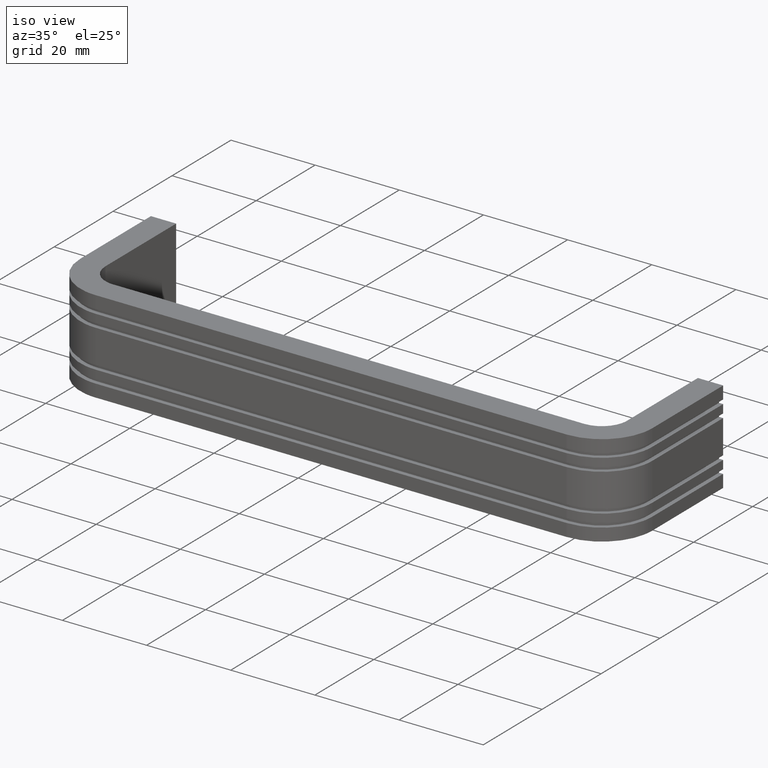
[diagram: clean part render]
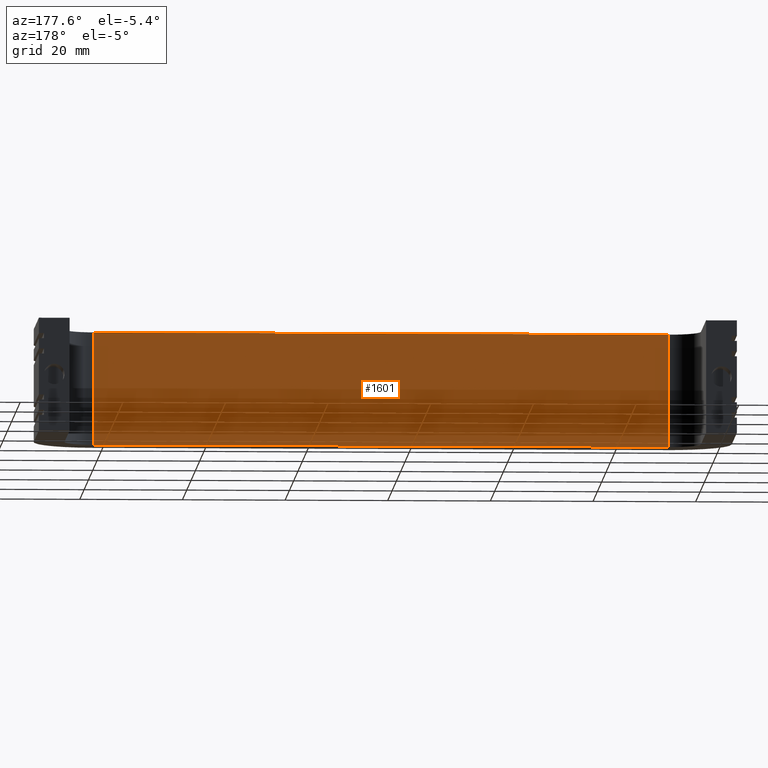
[diagram: tour spotlight — one face highlighted and labeled with its STEP entity id]
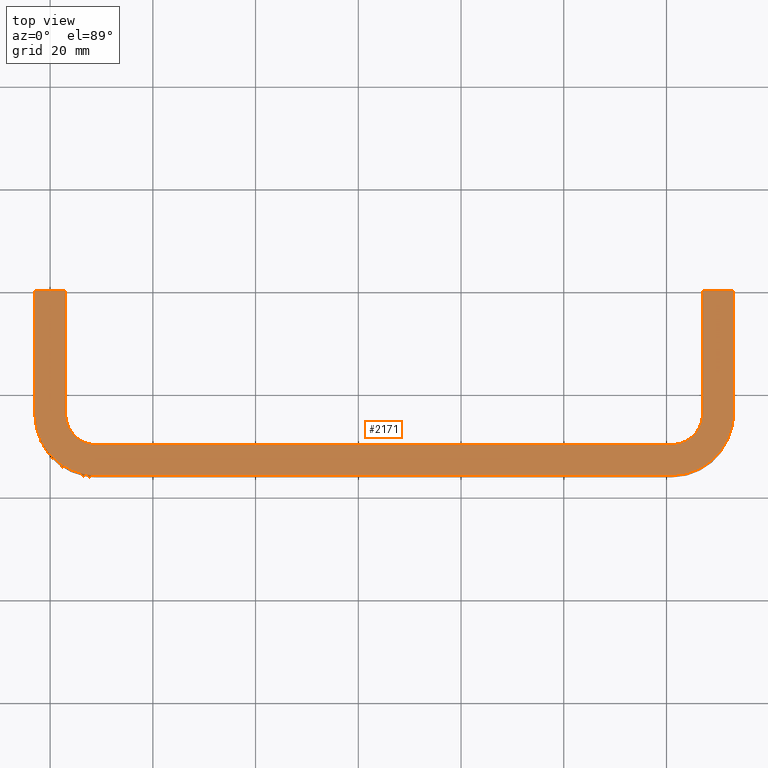
[diagram: tour spotlight — one face highlighted and labeled with its STEP entity id]
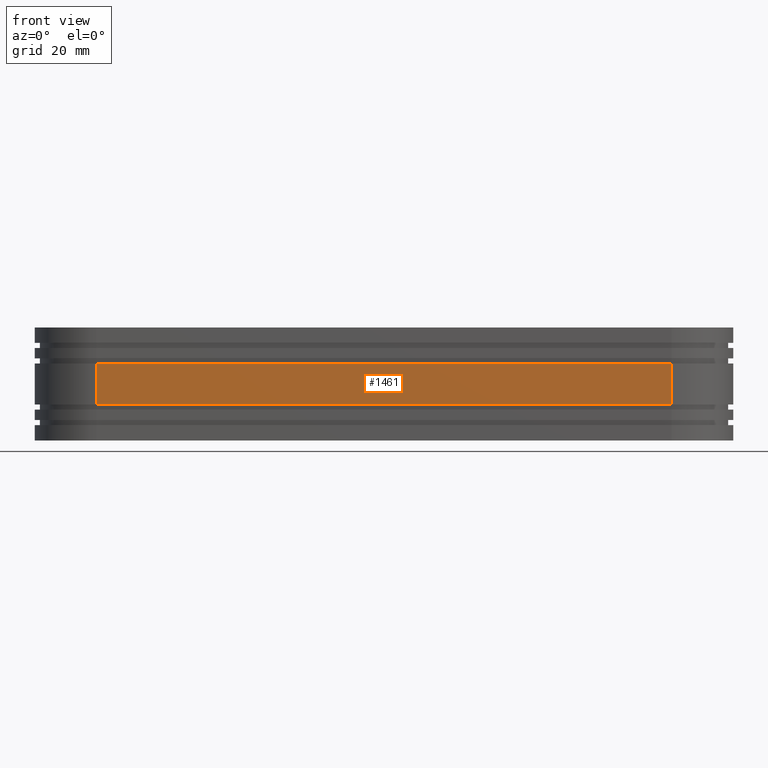
[diagram: tour spotlight — one face highlighted and labeled with its STEP entity id]
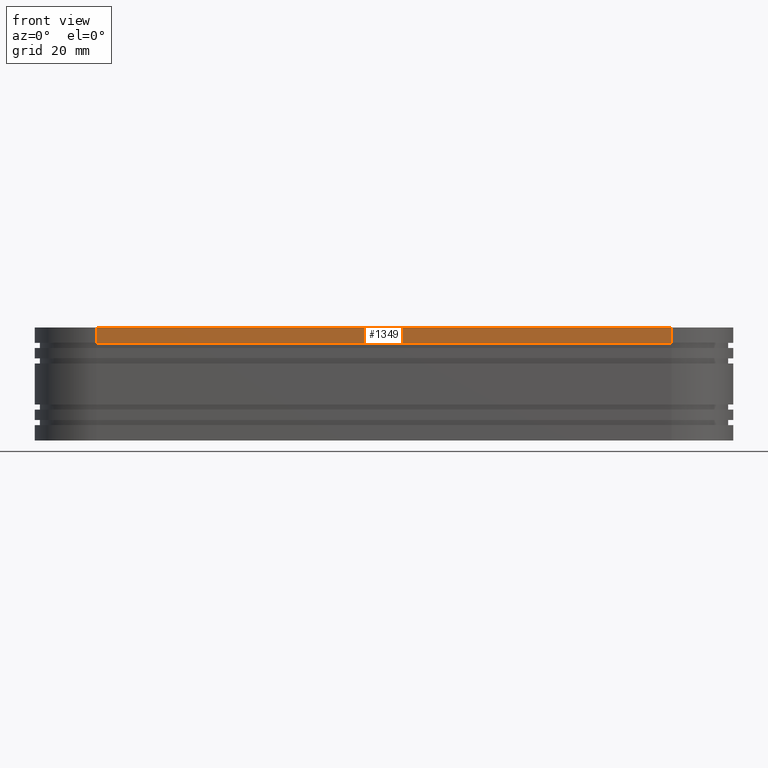
[diagram: tour spotlight — one face highlighted and labeled with its STEP entity id]
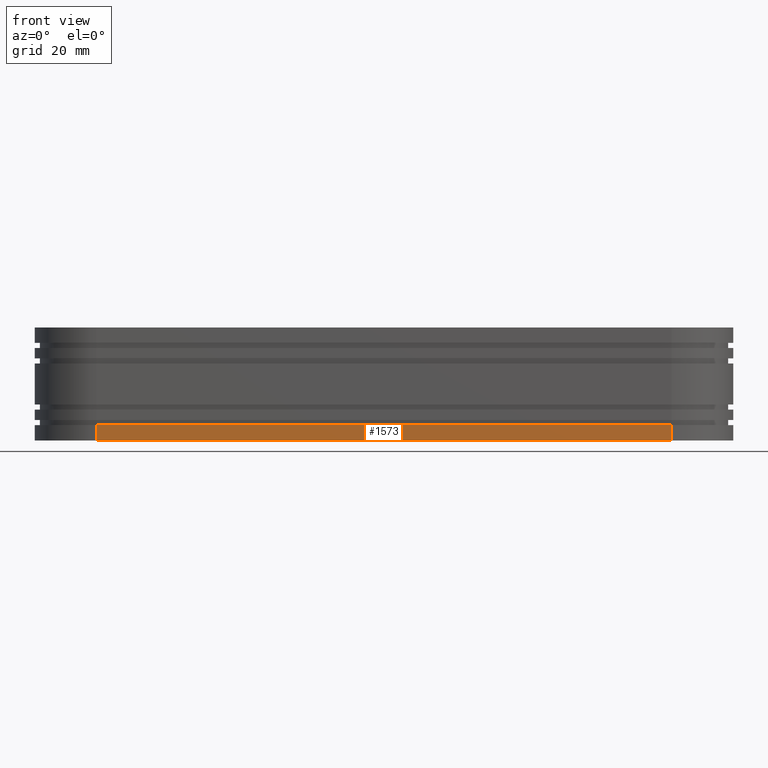
[diagram: tour spotlight — one face highlighted and labeled with its STEP entity id]
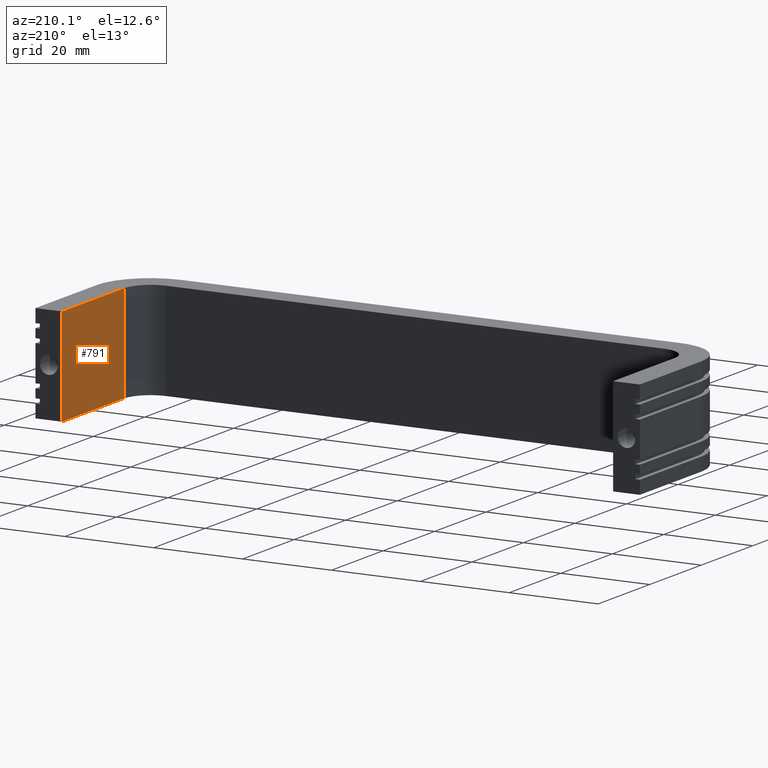
[diagram: tour spotlight — one face highlighted and labeled with its STEP entity id]
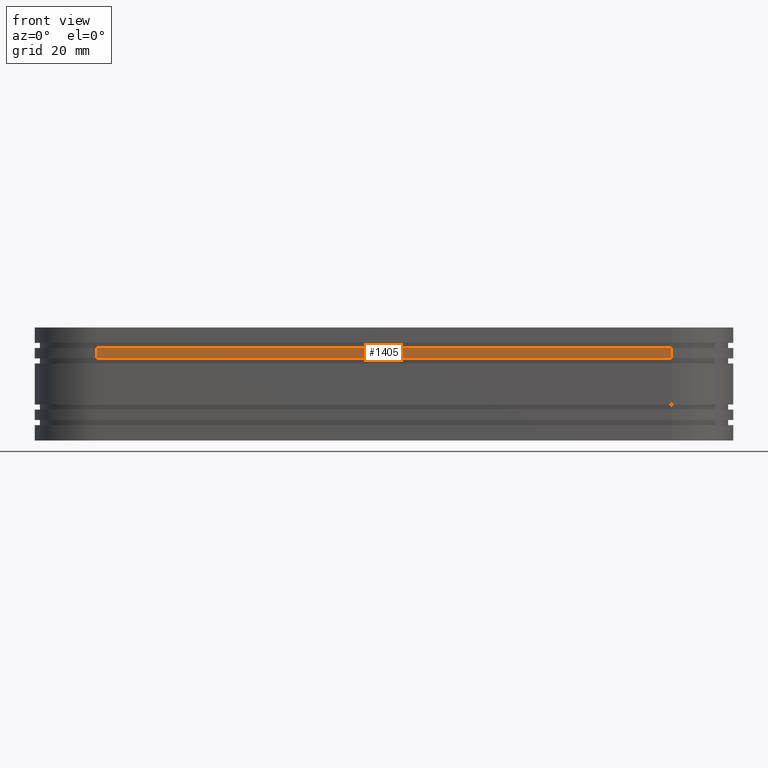
[diagram: tour spotlight — one face highlighted and labeled with its STEP entity id]
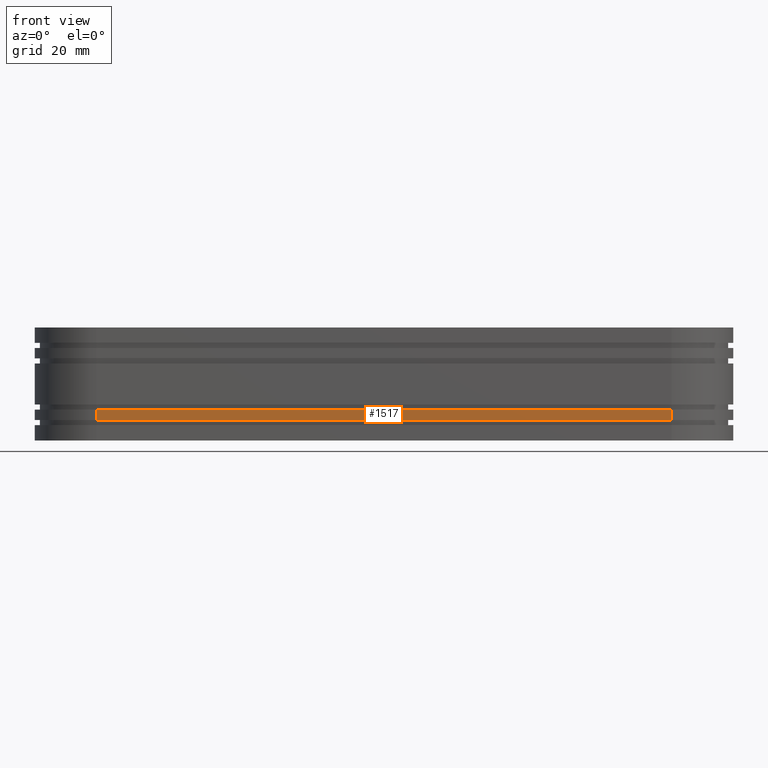
[diagram: tour spotlight — one face highlighted and labeled with its STEP entity id]
A machine part: a face-by-face anatomy tour. The part has 68 B-rep faces; the first image is the clean iso view, then the 8 largest visible faces are spotlighted one at a time (largest first), each with its STEP entity span.

Face 1 — auxiliary view, entity #1601. In plain terms, the highlighted face is a freeform B-spline surface patch.
Definition (entity closure, byte-faithful):
#1283=CARTESIAN_POINT('',(120.999900000000000,-30.0,-11.0));
#1284=VERTEX_POINT('',#1283);
#1298=CARTESIAN_POINT('',(120.999900000000000,-30.0,11.0));
#1299=VERTEX_POINT('',#1298);
#1300=CARTESIAN_POINT('',(120.999900000000000,-30.0,11.0));
#1301=CARTESIAN_POINT('',(120.999900000000000,-30.0,-11.0));
#1302=QUASI_UNIFORM_CURVE('',1,(#1300,#1301),.UNSPECIFIED.,.F.,.U.);
#1303=EDGE_CURVE('',#1299,#1284,#1302,.T.);
#1574=CARTESIAN_POINT('',(3.405605212077551,-30.0,12.098899957359730));
#1575=CARTESIAN_POINT('',(3.405605212077551,-30.0,-12.098900547445711));
#1576=CARTESIAN_POINT('',(126.594297791993900,-30.0,12.098899957359730));
#1577=CARTESIAN_POINT('',(126.594297791993900,-30.0,-12.098900547445711));
#1578=B_SPLINE_SURFACE_WITH_KNOTS('',1,1,((#1574,#1576),(#1575,#1577)),.UNSPECIFIED.,.F.,.F.,.U.,(2,2),(2,2),(0.0,24.197800504805450),(0.0,123.188692579916310),.UNSPECIFIED.);
#1579=CARTESIAN_POINT('',(9.0,-30.0,-11.0));
#1580=VERTEX_POINT('',#1579);
#1581=CARTESIAN_POINT('',(9.0,-30.0,-11.0));
#1582=CARTESIAN_POINT('',(120.999900000000000,-30.0,-11.0));
#1583=QUASI_UNIFORM_CURVE('',1,(#1581,#1582),.UNSPECIFIED.,.F.,.U.);
#1584=EDGE_CURVE('',#1580,#1284,#1583,.T.);
#1585=ORIENTED_EDGE('',*,*,#1584,.F.);
#1586=CARTESIAN_POINT('',(9.0,-30.0,11.0));
#1587=VERTEX_POINT('',#1586);
#1588=CARTESIAN_POINT('',(9.0,-30.0,11.0));
#1589=CARTESIAN_POINT('',(9.0,-30.0,-11.0));
#1590=QUASI_UNIFORM_CURVE('',1,(#1588,#1589),.UNSPECIFIED.,.F.,.U.);
#1591=EDGE_CURVE('',#1587,#1580,#1590,.T.);
#1592=ORIENTED_EDGE('',*,*,#1591,.F.);
#1593=CARTESIAN_POINT('',(9.0,-30.0,11.0));
#1594=CARTESIAN_POINT('',(120.999900000000000,-30.0,11.0));
#1595=QUASI_UNIFORM_CURVE('',1,(#1593,#1594),.UNSPECIFIED.,.F.,.U.);
#1596=EDGE_CURVE('',#1587,#1299,#1595,.T.);
#1597=ORIENTED_EDGE('',*,*,#1596,.T.);
#1598=ORIENTED_EDGE('',*,*,#1303,.T.);
#1599=EDGE_LOOP('',(#1585,#1592,#1597,#1598));
#1600=FACE_OUTER_BOUND('',#1599,.T.);
#1601=ADVANCED_FACE('',(#1600),#1578,.F.);

Face 2 — top view, entity #2171. In plain terms, the highlighted face is a freeform B-spline surface patch.
Definition (entity closure, byte-faithful):
#437=CARTESIAN_POINT('',(132.999900000000000,-24.0,11.0));
#438=VERTEX_POINT('',#437);
#439=CARTESIAN_POINT('',(132.999900000000000,0.0,11.0));
#440=VERTEX_POINT('',#439);
#441=CARTESIAN_POINT('',(132.999900000000000,-24.0,11.0));
#442=CARTESIAN_POINT('',(132.999900000000000,0.0,11.0));
#443=QUASI_UNIFORM_CURVE('',1,(#441,#442),.UNSPECIFIED.,.F.,.U.);
#444=EDGE_CURVE('',#438,#440,#443,.T.);
#770=CARTESIAN_POINT('',(126.999900000000000,-24.0,11.0));
#771=VERTEX_POINT('',#770);
#777=CARTESIAN_POINT('',(126.999900000000000,0.0,11.0));
#778=VERTEX_POINT('',#777);
#779=CARTESIAN_POINT('',(126.999900000000000,-24.0,11.0));
#780=CARTESIAN_POINT('',(126.999900000000000,0.0,11.0));
#781=QUASI_UNIFORM_CURVE('',1,(#779,#780),.UNSPECIFIED.,.F.,.U.);
#782=EDGE_CURVE('',#771,#778,#781,.T.);
#806=CARTESIAN_POINT('',(120.999900000000000,-36.0,11.0));
#807=VERTEX_POINT('',#806);
#808=CARTESIAN_POINT('',(120.999900000000000,-36.000000000000007,11.0));
#809=CARTESIAN_POINT('',(132.999900000000000,-36.000000000000014,11.0));
#810=CARTESIAN_POINT('',(132.999900000000000,-24.0,11.0));
#818=(BOUNDED_CURVE()B_SPLINE_CURVE(2,(#808,#809,#810),.UNSPECIFIED.,.F.,.U.)CURVE()GEOMETRIC_REPRESENTATION_ITEM()QUASI_UNIFORM_CURVE()RATIONAL_B_SPLINE_CURVE((1.0,0.707106781186548,1.0))REPRESENTATION_ITEM(''));
#819=EDGE_CURVE('',#807,#438,#818,.T.);
#1298=CARTESIAN_POINT('',(120.999900000000000,-30.0,11.0));
#1299=VERTEX_POINT('',#1298);
#1305=CARTESIAN_POINT('',(120.999900000000000,-30.0,11.0));
#1306=CARTESIAN_POINT('',(126.999900000000000,-30.000000000000004,11.0));
#1307=CARTESIAN_POINT('',(126.999900000000000,-24.0,11.0));
#1315=(BOUNDED_CURVE()B_SPLINE_CURVE(2,(#1305,#1306,#1307),.UNSPECIFIED.,.F.,.U.)CURVE()GEOMETRIC_REPRESENTATION_ITEM()QUASI_UNIFORM_CURVE()RATIONAL_B_SPLINE_CURVE((1.0,0.707106781186548,1.0))REPRESENTATION_ITEM(''));
#1316=EDGE_CURVE('',#1299,#771,#1315,.T.);
#1327=CARTESIAN_POINT('',(9.0,-36.0,11.0));
#1328=VERTEX_POINT('',#1327);
#1329=CARTESIAN_POINT('',(9.0,-36.0,11.0));
#1330=CARTESIAN_POINT('',(120.999900000000000,-36.0,11.0));
#1331=QUASI_UNIFORM_CURVE('',1,(#1329,#1330),.UNSPECIFIED.,.F.,.U.);
#1332=EDGE_CURVE('',#1328,#807,#1331,.T.);
#1586=CARTESIAN_POINT('',(9.0,-30.0,11.0));
#1587=VERTEX_POINT('',#1586);
#1593=CARTESIAN_POINT('',(9.0,-30.0,11.0));
#1594=CARTESIAN_POINT('',(120.999900000000000,-30.0,11.0));
#1595=QUASI_UNIFORM_CURVE('',1,(#1593,#1594),.UNSPECIFIED.,.F.,.U.);
#1596=EDGE_CURVE('',#1587,#1299,#1595,.T.);
#1616=CARTESIAN_POINT('',(-3.0,-24.0,11.0));
#1617=VERTEX_POINT('',#1616);
#1618=CARTESIAN_POINT('',(-3.000000000000001,-24.0,11.0));
#1619=CARTESIAN_POINT('',(-3.0,-36.000000000000014,11.0));
#1620=CARTESIAN_POINT('',(9.0,-36.000000000000007,11.0));
#1628=(BOUNDED_CURVE()B_SPLINE_CURVE(2,(#1618,#1619,#1620),.UNSPECIFIED.,.F.,.U.)CURVE()GEOMETRIC_REPRESENTATION_ITEM()QUASI_UNIFORM_CURVE()RATIONAL_B_SPLINE_CURVE((1.0,0.707106781186548,1.0))REPRESENTATION_ITEM(''));
#1629=EDGE_CURVE('',#1617,#1328,#1628,.T.);
#2108=CARTESIAN_POINT('',(3.0,-24.0,11.0));
#2109=VERTEX_POINT('',#2108);
#2115=CARTESIAN_POINT('',(2.999999999999999,-24.0,11.0));
#2116=CARTESIAN_POINT('',(2.999999999999999,-30.000000000000004,11.0));
#2117=CARTESIAN_POINT('',(9.0,-30.0,11.0));
#2125=(BOUNDED_CURVE()B_SPLINE_CURVE(2,(#2115,#2116,#2117),.UNSPECIFIED.,.F.,.U.)CURVE()GEOMETRIC_REPRESENTATION_ITEM()QUASI_UNIFORM_CURVE()RATIONAL_B_SPLINE_CURVE((1.0,0.707106781186548,1.0))REPRESENTATION_ITEM(''));
#2126=EDGE_CURVE('',#2109,#1587,#2125,.T.);
#2132=CARTESIAN_POINT('',(139.793088358057100,-37.798199930225017,11.0));
#2133=CARTESIAN_POINT('',(-9.793198085527894,-37.798199930225017,11.0));
#2134=CARTESIAN_POINT('',(139.793088358057100,1.798200895820261,11.0));
#2135=CARTESIAN_POINT('',(-9.793198085527894,1.798200895820261,11.0));
#2136=B_SPLINE_SURFACE_WITH_KNOTS('',1,1,((#2132,#2134),(#2133,#2135)),.UNSPECIFIED.,.F.,.F.,.U.,(2,2),(2,2),(0.0,149.586286443585010),(0.0,39.596400826045283),.UNSPECIFIED.);
#2137=CARTESIAN_POINT('',(-3.0,0.0,11.0));
#2138=VERTEX_POINT('',#2137);
#2139=CARTESIAN_POINT('',(-3.0,0.0,11.0));
#2140=CARTESIAN_POINT('',(-3.0,-24.0,11.0));
#2141=QUASI_UNIFORM_CURVE('',1,(#2139,#2140),.UNSPECIFIED.,.F.,.U.);
#2142=EDGE_CURVE('',#2138,#1617,#2141,.T.);
#2143=ORIENTED_EDGE('',*,*,#2142,.T.);
#2144=ORIENTED_EDGE('',*,*,#1629,.T.);
#2145=ORIENTED_EDGE('',*,*,#1332,.T.);
#2146=ORIENTED_EDGE('',*,*,#819,.T.);
#2147=ORIENTED_EDGE('',*,*,#444,.T.);
#2148=CARTESIAN_POINT('',(132.999900000000000,0.0,11.0));
#2149=CARTESIAN_POINT('',(126.999900000000000,0.0,11.0));
#2150=QUASI_UNIFORM_CURVE('',1,(#2148,#2149),.UNSPECIFIED.,.F.,.U.);
#2151=EDGE_CURVE('',#440,#778,#2150,.T.);
#2152=ORIENTED_EDGE('',*,*,#2151,.T.);
#2153=ORIENTED_EDGE('',*,*,#782,.F.);
#2154=ORIENTED_EDGE('',*,*,#1316,.F.);
#2155=ORIENTED_EDGE('',*,*,#1596,.F.);
#2156=ORIENTED_EDGE('',*,*,#2126,.F.);
#2157=CARTESIAN_POINT('',(3.0,0.0,11.0));
#2158=VERTEX_POINT('',#2157);
#2159=CARTESIAN_POINT('',(3.0,0.0,11.0));
#2160=CARTESIAN_POINT('',(3.0,-24.0,11.0));
#2161=QUASI_UNIFORM_CURVE('',1,(#2159,#2160),.UNSPECIFIED.,.F.,.U.);
#2162=EDGE_CURVE('',#2158,#2109,#2161,.T.);
#2163=ORIENTED_EDGE('',*,*,#2162,.F.);
#2164=CARTESIAN_POINT('',(-3.0,0.0,11.0));
#2165=CARTESIAN_POINT('',(3.0,0.0,11.0));
#2166=QUASI_UNIFORM_CURVE('',1,(#2164,#2165),.UNSPECIFIED.,.F.,.U.);
#2167=EDGE_CURVE('',#2138,#2158,#2166,.T.);
#2168=ORIENTED_EDGE('',*,*,#2167,.F.);
#2169=EDGE_LOOP('',(#2143,#2144,#2145,#2146,#2147,#2152,#2153,#2154,#2155,#2156,#2163,#2168));
#2170=FACE_OUTER_BOUND('',#2169,.T.);
#2171=ADVANCED_FACE('',(#2170),#2136,.F.);

Face 3 — front view, entity #1461. In plain terms, the highlighted face is a freeform B-spline surface patch.
Definition (entity closure, byte-faithful):
#1018=CARTESIAN_POINT('',(120.999900000000000,-36.0,4.000000000000085));
#1019=VERTEX_POINT('',#1018);
#1033=CARTESIAN_POINT('',(120.999900000000000,-36.0,-3.999999999999915));
#1034=VERTEX_POINT('',#1033);
#1035=CARTESIAN_POINT('',(120.999900000000000,-36.0,-3.999999999999915));
#1036=CARTESIAN_POINT('',(120.999900000000000,-36.0,4.000000000000085));
#1037=QUASI_UNIFORM_CURVE('',1,(#1035,#1036),.UNSPECIFIED.,.F.,.U.);
#1038=EDGE_CURVE('',#1034,#1019,#1037,.T.);
#1434=CARTESIAN_POINT('',(3.405605212077551,-36.0,-4.399599984494365));
#1435=CARTESIAN_POINT('',(3.405605212077551,-36.0,4.399600199071254));
#1436=CARTESIAN_POINT('',(126.594297791993900,-36.0,-4.399599984494365));
#1437=CARTESIAN_POINT('',(126.594297791993900,-36.0,4.399600199071254));
#1438=B_SPLINE_SURFACE_WITH_KNOTS('',1,1,((#1434,#1436),(#1435,#1437)),.UNSPECIFIED.,.F.,.F.,.U.,(2,2),(2,2),(0.0,8.799200183565619),(0.0,123.188692579916310),.UNSPECIFIED.);
#1439=CARTESIAN_POINT('',(9.0,-36.0,4.000000000000085));
#1440=VERTEX_POINT('',#1439);
#1441=CARTESIAN_POINT('',(9.0,-36.0,4.000000000000085));
#1442=CARTESIAN_POINT('',(120.999900000000000,-36.0,4.000000000000085));
#1443=QUASI_UNIFORM_CURVE('',1,(#1441,#1442),.UNSPECIFIED.,.F.,.U.);
#1444=EDGE_CURVE('',#1440,#1019,#1443,.T.);
#1445=ORIENTED_EDGE('',*,*,#1444,.F.);
#1446=CARTESIAN_POINT('',(9.0,-36.0,-3.999999999999915));
#1447=VERTEX_POINT('',#1446);
#1448=CARTESIAN_POINT('',(9.0,-36.0,-3.999999999999915));
#1449=CARTESIAN_POINT('',(9.0,-36.0,4.000000000000085));
#1450=QUASI_UNIFORM_CURVE('',1,(#1448,#1449),.UNSPECIFIED.,.F.,.U.);
#1451=EDGE_CURVE('',#1447,#1440,#1450,.T.);
#1452=ORIENTED_EDGE('',*,*,#1451,.F.);
#1453=CARTESIAN_POINT('',(9.0,-36.0,-3.999999999999915));
#1454=CARTESIAN_POINT('',(120.999900000000000,-36.0,-3.999999999999915));
#1455=QUASI_UNIFORM_CURVE('',1,(#1453,#1454),.UNSPECIFIED.,.F.,.U.);
#1456=EDGE_CURVE('',#1447,#1034,#1455,.T.);
#1457=ORIENTED_EDGE('',*,*,#1456,.T.);
#1458=ORIENTED_EDGE('',*,*,#1038,.T.);
#1459=EDGE_LOOP('',(#1445,#1452,#1457,#1458));
#1460=FACE_OUTER_BOUND('',#1459,.T.);
#1461=ADVANCED_FACE('',(#1460),#1438,.F.);

Face 4 — front view, entity #1349. In plain terms, the highlighted face is a freeform B-spline surface patch.
Definition (entity closure, byte-faithful):
#806=CARTESIAN_POINT('',(120.999900000000000,-36.0,11.0));
#807=VERTEX_POINT('',#806);
#821=CARTESIAN_POINT('',(120.999900000000000,-36.0,8.000000000000091));
#822=VERTEX_POINT('',#821);
#823=CARTESIAN_POINT('',(120.999900000000000,-36.0,8.000000000000091));
#824=CARTESIAN_POINT('',(120.999900000000000,-36.0,11.0));
#825=QUASI_UNIFORM_CURVE('',1,(#823,#824),.UNSPECIFIED.,.F.,.U.);
#826=EDGE_CURVE('',#822,#807,#825,.T.);
#1322=CARTESIAN_POINT('',(3.405605212077551,-36.0,7.850150005814676));
#1323=CARTESIAN_POINT('',(3.405605212077551,-36.0,11.149850074651690));
#1324=CARTESIAN_POINT('',(126.594297791993900,-36.0,7.850150005814676));
#1325=CARTESIAN_POINT('',(126.594297791993900,-36.0,11.149850074651690));
#1326=B_SPLINE_SURFACE_WITH_KNOTS('',1,1,((#1322,#1324),(#1323,#1325)),.UNSPECIFIED.,.F.,.F.,.U.,(2,2),(2,2),(0.0,3.299700068837009),(0.0,123.188692579916310),.UNSPECIFIED.);
#1327=CARTESIAN_POINT('',(9.0,-36.0,11.0));
#1328=VERTEX_POINT('',#1327);
#1329=CARTESIAN_POINT('',(9.0,-36.0,11.0));
#1330=CARTESIAN_POINT('',(120.999900000000000,-36.0,11.0));
#1331=QUASI_UNIFORM_CURVE('',1,(#1329,#1330),.UNSPECIFIED.,.F.,.U.);
#1332=EDGE_CURVE('',#1328,#807,#1331,.T.);
#1333=ORIENTED_EDGE('',*,*,#1332,.F.);
#1334=CARTESIAN_POINT('',(9.0,-36.0,8.000000000000091));
#1335=VERTEX_POINT('',#1334);
#1336=CARTESIAN_POINT('',(9.0,-36.0,8.000000000000091));
#1337=CARTESIAN_POINT('',(9.0,-36.0,11.0));
#1338=QUASI_UNIFORM_CURVE('',1,(#1336,#1337),.UNSPECIFIED.,.F.,.U.);
#1339=EDGE_CURVE('',#1335,#1328,#1338,.T.);
#1340=ORIENTED_EDGE('',*,*,#1339,.F.);
#1341=CARTESIAN_POINT('',(9.0,-36.0,8.000000000000091));
#1342=CARTESIAN_POINT('',(120.999900000000000,-36.0,8.000000000000091));
#1343=QUASI_UNIFORM_CURVE('',1,(#1341,#1342),.UNSPECIFIED.,.F.,.U.);
#1344=EDGE_CURVE('',#1335,#822,#1343,.T.);
#1345=ORIENTED_EDGE('',*,*,#1344,.T.);
#1346=ORIENTED_EDGE('',*,*,#826,.T.);
#1347=EDGE_LOOP('',(#1333,#1340,#1345,#1346));
#1348=FACE_OUTER_BOUND('',#1347,.T.);
#1349=ADVANCED_FACE('',(#1348),#1326,.F.);

Face 5 — front view, entity #1573. In plain terms, the highlighted face is a freeform B-spline surface patch.
Definition (entity closure, byte-faithful):
#1230=CARTESIAN_POINT('',(120.999900000000000,-36.0,-8.0));
#1231=VERTEX_POINT('',#1230);
#1245=CARTESIAN_POINT('',(120.999900000000000,-36.0,-11.0));
#1246=VERTEX_POINT('',#1245);
#1247=CARTESIAN_POINT('',(120.999900000000000,-36.0,-11.0));
#1248=CARTESIAN_POINT('',(120.999900000000000,-36.0,-8.0));
#1249=QUASI_UNIFORM_CURVE('',1,(#1247,#1248),.UNSPECIFIED.,.F.,.U.);
#1250=EDGE_CURVE('',#1246,#1231,#1249,.T.);
#1546=CARTESIAN_POINT('',(3.405605212077551,-36.0,-11.149849994185420));
#1547=CARTESIAN_POINT('',(3.405605212077551,-36.0,-7.850149925348312));
#1548=CARTESIAN_POINT('',(126.594297791993900,-36.0,-11.149849994185420));
#1549=CARTESIAN_POINT('',(126.594297791993900,-36.0,-7.850149925348312));
#1550=B_SPLINE_SURFACE_WITH_KNOTS('',1,1,((#1546,#1548),(#1547,#1549)),.UNSPECIFIED.,.F.,.F.,.U.,(2,2),(2,2),(0.0,3.299700068837106),(0.0,123.188692579916310),.UNSPECIFIED.);
#1551=CARTESIAN_POINT('',(9.0,-36.0,-8.0));
#1552=VERTEX_POINT('',#1551);
#1553=CARTESIAN_POINT('',(9.0,-36.0,-8.0));
#1554=CARTESIAN_POINT('',(120.999900000000000,-36.0,-8.0));
#1555=QUASI_UNIFORM_CURVE('',1,(#1553,#1554),.UNSPECIFIED.,.F.,.U.);
#1556=EDGE_CURVE('',#1552,#1231,#1555,.T.);
#1557=ORIENTED_EDGE('',*,*,#1556,.F.);
#1558=CARTESIAN_POINT('',(9.0,-36.0,-11.0));
#1559=VERTEX_POINT('',#1558);
#1560=CARTESIAN_POINT('',(9.0,-36.0,-11.0));
#1561=CARTESIAN_POINT('',(9.0,-36.0,-8.0));
#1562=QUASI_UNIFORM_CURVE('',1,(#1560,#1561),.UNSPECIFIED.,.F.,.U.);
#1563=EDGE_CURVE('',#1559,#1552,#1562,.T.);
#1564=ORIENTED_EDGE('',*,*,#1563,.F.);
#1565=CARTESIAN_POINT('',(9.0,-36.0,-11.0));
#1566=CARTESIAN_POINT('',(120.999900000000000,-36.0,-11.0));
#1567=QUASI_UNIFORM_CURVE('',1,(#1565,#1566),.UNSPECIFIED.,.F.,.U.);
#1568=EDGE_CURVE('',#1559,#1246,#1567,.T.);
#1569=ORIENTED_EDGE('',*,*,#1568,.T.);
#1570=ORIENTED_EDGE('',*,*,#1250,.T.);
#1571=EDGE_LOOP('',(#1557,#1564,#1569,#1570));
#1572=FACE_OUTER_BOUND('',#1571,.T.);
#1573=ADVANCED_FACE('',(#1572),#1550,.F.);

Face 6 — auxiliary view, entity #791. In plain terms, the highlighted face is a freeform B-spline surface patch.
Definition (entity closure, byte-faithful):
#756=CARTESIAN_POINT('',(126.999900000000000,-25.198799953483348,12.098899957359730));
#757=CARTESIAN_POINT('',(126.999900000000000,-25.198799953483341,-12.098900547445711));
#758=CARTESIAN_POINT('',(126.999900000000000,1.198800597213507,12.098899957359730));
#759=CARTESIAN_POINT('',(126.999900000000000,1.198800597213507,-12.098900547445711));
#760=B_SPLINE_SURFACE_WITH_KNOTS('',1,1,((#756,#758),(#757,#759)),.UNSPECIFIED.,.F.,.F.,.U.,(2,2),(2,2),(0.0,24.197800504805439),(0.0,26.397600550696851),.UNSPECIFIED.);
#761=CARTESIAN_POINT('',(126.999900000000000,-24.0,-11.0));
#762=VERTEX_POINT('',#761);
#763=CARTESIAN_POINT('',(126.999900000000000,0.0,-11.0));
#764=VERTEX_POINT('',#763);
#765=CARTESIAN_POINT('',(126.999900000000000,-24.0,-11.0));
#766=CARTESIAN_POINT('',(126.999900000000000,0.0,-11.0));
#767=QUASI_UNIFORM_CURVE('',1,(#765,#766),.UNSPECIFIED.,.F.,.U.);
#768=EDGE_CURVE('',#762,#764,#767,.T.);
#769=ORIENTED_EDGE('',*,*,#768,.F.);
#770=CARTESIAN_POINT('',(126.999900000000000,-24.0,11.0));
#771=VERTEX_POINT('',#770);
#772=CARTESIAN_POINT('',(126.999900000000000,-24.0,11.0));
#773=CARTESIAN_POINT('',(126.999900000000000,-24.0,-11.0));
#774=QUASI_UNIFORM_CURVE('',1,(#772,#773),.UNSPECIFIED.,.F.,.U.);
#775=EDGE_CURVE('',#771,#762,#774,.T.);
#776=ORIENTED_EDGE('',*,*,#775,.F.);
#777=CARTESIAN_POINT('',(126.999900000000000,0.0,11.0));
#778=VERTEX_POINT('',#777);
#779=CARTESIAN_POINT('',(126.999900000000000,-24.0,11.0));
#780=CARTESIAN_POINT('',(126.999900000000000,0.0,11.0));
#781=QUASI_UNIFORM_CURVE('',1,(#779,#780),.UNSPECIFIED.,.F.,.U.);
#782=EDGE_CURVE('',#771,#778,#781,.T.);
#783=ORIENTED_EDGE('',*,*,#782,.T.);
#784=CARTESIAN_POINT('',(126.999900000000000,0.0,11.0));
#785=CARTESIAN_POINT('',(126.999900000000000,0.0,-11.0));
#786=QUASI_UNIFORM_CURVE('',1,(#784,#785),.UNSPECIFIED.,.F.,.U.);
#787=EDGE_CURVE('',#778,#764,#786,.T.);
#788=ORIENTED_EDGE('',*,*,#787,.T.);
#789=EDGE_LOOP('',(#769,#776,#783,#788));
#790=FACE_OUTER_BOUND('',#789,.T.);
#791=ADVANCED_FACE('',(#790),#760,.F.);

Face 7 — front view, entity #1405. In plain terms, the highlighted face is a freeform B-spline surface patch.
Definition (entity closure, byte-faithful):
#912=CARTESIAN_POINT('',(120.999900000000000,-36.0,7.0));
#913=VERTEX_POINT('',#912);
#927=CARTESIAN_POINT('',(120.999900000000000,-36.0,5.0));
#928=VERTEX_POINT('',#927);
#929=CARTESIAN_POINT('',(120.999900000000000,-36.0,5.0));
#930=CARTESIAN_POINT('',(120.999900000000000,-36.0,7.0));
#931=QUASI_UNIFORM_CURVE('',1,(#929,#930),.UNSPECIFIED.,.F.,.U.);
#932=EDGE_CURVE('',#928,#913,#931,.T.);
#1378=CARTESIAN_POINT('',(3.405605212077551,-36.0,4.900100003876388));
#1379=CARTESIAN_POINT('',(3.405605212077551,-36.0,7.099900049767793));
#1380=CARTESIAN_POINT('',(126.594297791993900,-36.0,4.900100003876388));
#1381=CARTESIAN_POINT('',(126.594297791993900,-36.0,7.099900049767793));
#1382=B_SPLINE_SURFACE_WITH_KNOTS('',1,1,((#1378,#1380),(#1379,#1381)),.UNSPECIFIED.,.F.,.F.,.U.,(2,2),(2,2),(0.0,2.199800045891405),(0.0,123.188692579916310),.UNSPECIFIED.);
#1383=CARTESIAN_POINT('',(9.0,-36.0,7.0));
#1384=VERTEX_POINT('',#1383);
#1385=CARTESIAN_POINT('',(9.0,-36.0,7.0));
#1386=CARTESIAN_POINT('',(120.999900000000000,-36.0,7.0));
#1387=QUASI_UNIFORM_CURVE('',1,(#1385,#1386),.UNSPECIFIED.,.F.,.U.);
#1388=EDGE_CURVE('',#1384,#913,#1387,.T.);
#1389=ORIENTED_EDGE('',*,*,#1388,.F.);
#1390=CARTESIAN_POINT('',(9.0,-36.0,5.0));
#1391=VERTEX_POINT('',#1390);
#1392=CARTESIAN_POINT('',(9.0,-36.0,5.0));
#1393=CARTESIAN_POINT('',(9.0,-36.0,7.0));
#1394=QUASI_UNIFORM_CURVE('',1,(#1392,#1393),.UNSPECIFIED.,.F.,.U.);
#1395=EDGE_CURVE('',#1391,#1384,#1394,.T.);
#1396=ORIENTED_EDGE('',*,*,#1395,.F.);
#1397=CARTESIAN_POINT('',(9.0,-36.0,5.0));
#1398=CARTESIAN_POINT('',(120.999900000000000,-36.0,5.0));
#1399=QUASI_UNIFORM_CURVE('',1,(#1397,#1398),.UNSPECIFIED.,.F.,.U.);
#1400=EDGE_CURVE('',#1391,#928,#1399,.T.);
#1401=ORIENTED_EDGE('',*,*,#1400,.T.);
#1402=ORIENTED_EDGE('',*,*,#932,.T.);
#1403=EDGE_LOOP('',(#1389,#1396,#1401,#1402));
#1404=FACE_OUTER_BOUND('',#1403,.T.);
#1405=ADVANCED_FACE('',(#1404),#1382,.F.);

Face 8 — front view, entity #1517. In plain terms, the highlighted face is a freeform B-spline surface patch.
Definition (entity closure, byte-faithful):
#1124=CARTESIAN_POINT('',(120.999900000000000,-36.0,-4.999999999999920));
#1125=VERTEX_POINT('',#1124);
#1139=CARTESIAN_POINT('',(120.999900000000000,-36.0,-7.0));
#1140=VERTEX_POINT('',#1139);
#1141=CARTESIAN_POINT('',(120.999900000000000,-36.0,-7.0));
#1142=CARTESIAN_POINT('',(120.999900000000000,-36.0,-4.999999999999920));
#1143=QUASI_UNIFORM_CURVE('',1,(#1141,#1142),.UNSPECIFIED.,.F.,.U.);
#1144=EDGE_CURVE('',#1140,#1125,#1143,.T.);
#1490=CARTESIAN_POINT('',(3.405605212077551,-36.0,-7.099899996123617));
#1491=CARTESIAN_POINT('',(3.405605212077551,-36.0,-4.900099950232124));
#1492=CARTESIAN_POINT('',(126.594297791993900,-36.0,-7.099899996123617));
#1493=CARTESIAN_POINT('',(126.594297791993900,-36.0,-4.900099950232124));
#1494=B_SPLINE_SURFACE_WITH_KNOTS('',1,1,((#1490,#1492),(#1491,#1493)),.UNSPECIFIED.,.F.,.F.,.U.,(2,2),(2,2),(0.0,2.199800045891493),(0.0,123.188692579916310),.UNSPECIFIED.);
#1495=CARTESIAN_POINT('',(9.0,-36.0,-4.999999999999920));
#1496=VERTEX_POINT('',#1495);
#1497=CARTESIAN_POINT('',(9.0,-36.0,-4.999999999999920));
#1498=CARTESIAN_POINT('',(120.999900000000000,-36.0,-4.999999999999920));
#1499=QUASI_UNIFORM_CURVE('',1,(#1497,#1498),.UNSPECIFIED.,.F.,.U.);
#1500=EDGE_CURVE('',#1496,#1125,#1499,.T.);
#1501=ORIENTED_EDGE('',*,*,#1500,.F.);
#1502=CARTESIAN_POINT('',(9.0,-36.0,-7.0));
#1503=VERTEX_POINT('',#1502);
#1504=CARTESIAN_POINT('',(9.0,-36.0,-7.0));
#1505=CARTESIAN_POINT('',(9.0,-36.0,-4.999999999999920));
#1506=QUASI_UNIFORM_CURVE('',1,(#1504,#1505),.UNSPECIFIED.,.F.,.U.);
#1507=EDGE_CURVE('',#1503,#1496,#1506,.T.);
#1508=ORIENTED_EDGE('',*,*,#1507,.F.);
#1509=CARTESIAN_POINT('',(9.0,-36.0,-7.0));
#1510=CARTESIAN_POINT('',(120.999900000000000,-36.0,-7.0));
#1511=QUASI_UNIFORM_CURVE('',1,(#1509,#1510),.UNSPECIFIED.,.F.,.U.);
#1512=EDGE_CURVE('',#1503,#1140,#1511,.T.);
#1513=ORIENTED_EDGE('',*,*,#1512,.T.);
#1514=ORIENTED_EDGE('',*,*,#1144,.T.);
#1515=EDGE_LOOP('',(#1501,#1508,#1513,#1514));
#1516=FACE_OUTER_BOUND('',#1515,.T.);
#1517=ADVANCED_FACE('',(#1516),#1494,.F.);